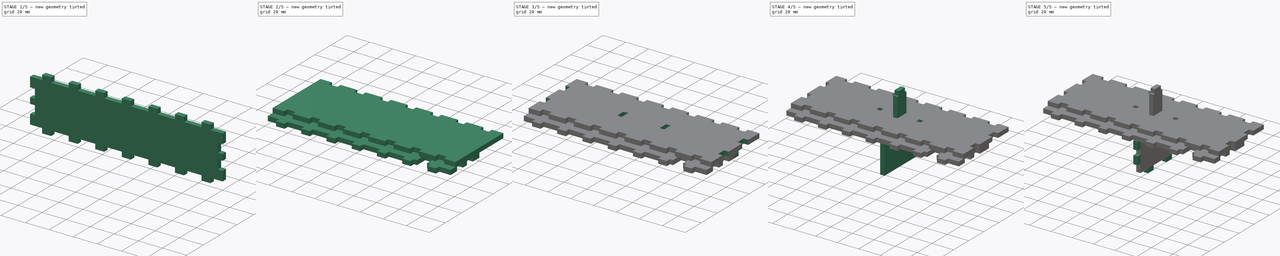
[diagram: build sequence overview — one tinted view per stage of 5, left to right]
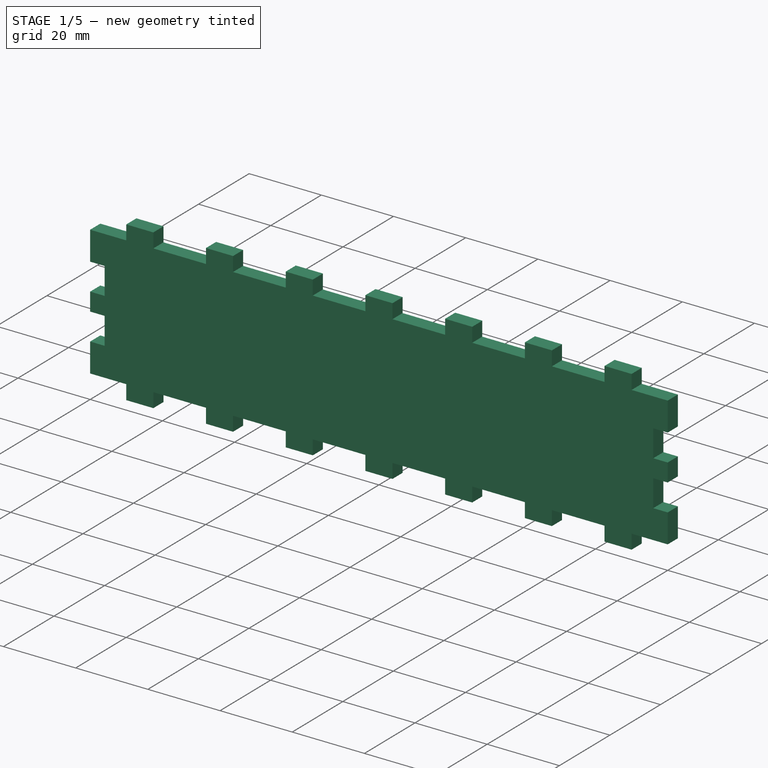
[diagram: stage 1 of 5 — iso view after this stage's code; geometry added in this stage tinted green]
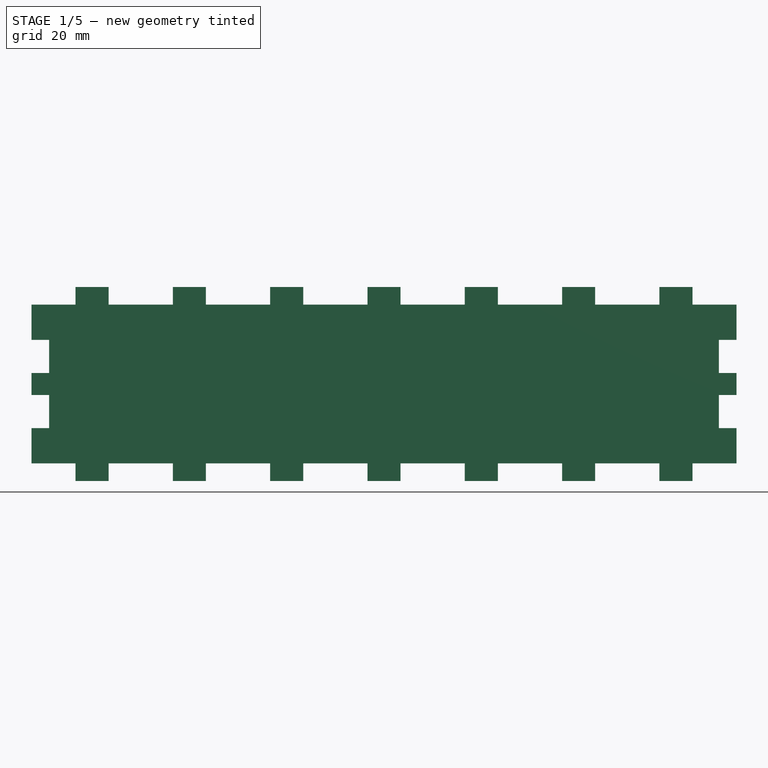
[diagram: stage 1 of 5 — front view after this stage's code; geometry added in this stage tinted green]
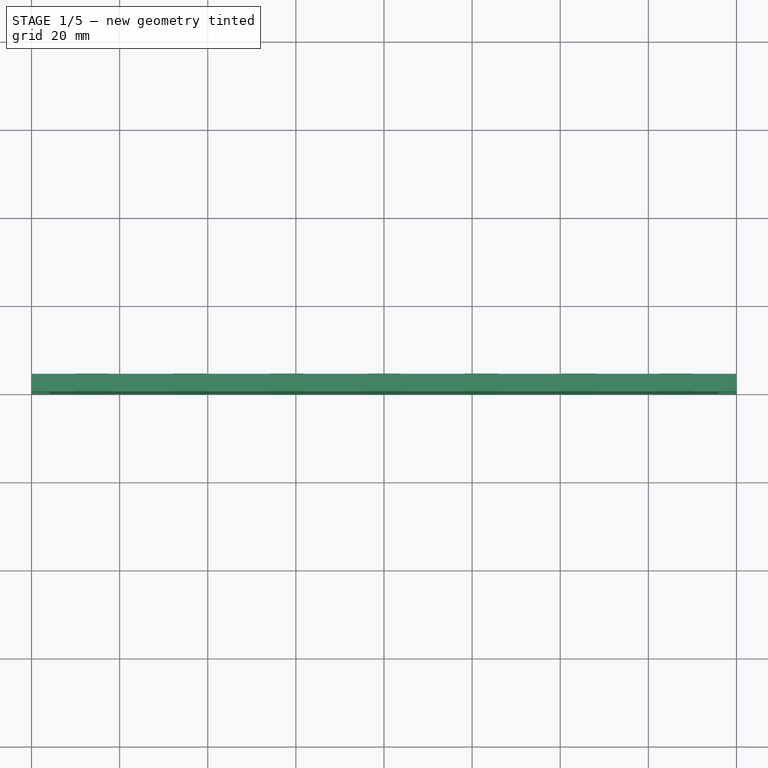
[diagram: stage 1 of 5 — top view after this stage's code; geometry added in this stage tinted green]
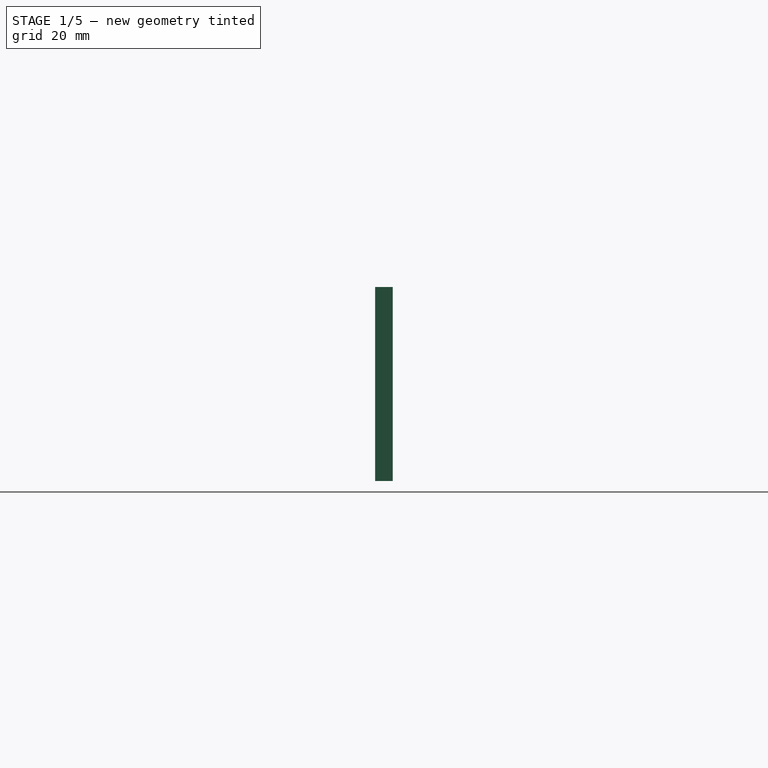
[diagram: stage 1 of 5 — right view after this stage's code; geometry added in this stage tinted green]
FCSTD DOCUMENT  (FreeCAD 0.21R33771 (Git))
Label: deskLampCNC
License: All rights reserved
LicenseURL: http://en.wikipedia.org/wiki/All_rights_reserved
objects: Sketcher::SketchObject×18, PartDesign::Pocket×9, PartDesign::LinearPattern×9, PartDesign::Pad×8, PartDesign::Body×7, PartDesign::MultiTransform×6, PartDesign::Mirrored×3, PartDesign::FeatureBase×2, Spreadsheet::Sheet×1, App::Link×1, App::Part×1
note: 79 computed .brp shape members not serialized (recipe doc carries the construction recipe); baked Part::Feature solids carry a one-line shape summary decoded from their .brp

FEATURE [Sketcher::SketchObject] Sketch002
  FullyConstrained = true
  MapMode = 5
  Placement = pos=(0,0,0) rot=(1,0,0;1.5708rad)
  Support = -> [XZ_Plane002]
  expr: Constraints[10] = Spreadsheet.bodyHeight
  expr: Constraints[8] = Spreadsheet.bodyWidth
  sketch-geometry (4):
    g0: LineSegment StartX=-80 StartY=0 StartZ=0 EndX=80 EndY=-1e-16 EndZ=0
    g1: LineSegment StartX=80 StartY=-1e-16 StartZ=0 EndX=80 EndY=-36 EndZ=0
    g2: LineSegment StartX=80 StartY=-36 StartZ=0 EndX=-80 EndY=-36 EndZ=0
    g3: LineSegment StartX=-80 StartY=-36 StartZ=0 EndX=-80 EndY=0 EndZ=0
  constraints (11):
    c: Coincident(g0,g1)
    c: Coincident(g1,g2)
    c: Coincident(g2,g3)
    c: Coincident(g3,g0)
    c: Horizontal(g2)
    c: Vertical(g1)
    c: Vertical(g3)
    c: PointOnObject(g0,g-1)
    c: DistanceX(g0,g0) = 160
    c: Symmetric(g0,g0,g-2)
    c: DistanceY(g1,g1) = 36
FEATURE [PartDesign::Pad] Pad001
  Direction = (0,-1,-2e-16)
  Length = 4
  Length2 = 100
  Placement = pos=(0,0,0) rot=(1,0,0;1.5708rad)
  Profile = -> Sketch002
  Reversed = true
  Type = 0
  expr: Length = Spreadsheet.deskThickness
FEATURE [Sketcher::SketchObject] Sketch003
  ExternalGeometry = -> [Pad001]
  FullyConstrained = true
  MapMode = 5
  Placement = pos=(0,0,0) rot=(0,0,1;3.14159rad)
  Support = -> [Pad001]
  expr: Constraints[10] = Spreadsheet.holeXOffset
  expr: Constraints[8] = Spreadsheet.holeWidth
  expr: Constraints[9] = Spreadsheet.deskThickness
  sketch-geometry (4):
    g0: LineSegment StartX=70 StartY=0 StartZ=0 EndX=62.5 EndY=0 EndZ=0
    g1: LineSegment StartX=62.5 StartY=0 StartZ=0 EndX=62.5 EndY=-4 EndZ=0
    g2: LineSegment StartX=62.5 StartY=-4 StartZ=0 EndX=70 EndY=-4 EndZ=0
    g3: LineSegment StartX=70 StartY=-4 StartZ=0 EndX=70 EndY=0 EndZ=0
  constraints (12):
    c: Coincident(g0,g1)
    c: Coincident(g1,g2)
    c: Coincident(g2,g3)
    c: Coincident(g3,g0)
    c: Horizontal(g0)
    c: Horizontal(g2)
    c: Vertical(g1)
    c: Vertical(g3)
    c: DistanceX(g0,g0) = 7.5
    c: DistanceY(g3,g3) = 4
    c: DistanceX(g0,g-3) = 10
    c: Horizontal(g0,g-3)
FEATURE [PartDesign::Pad] Pad002
  BaseFeature = -> Pad001
  Direction = (0,-2e-16,1)
  Length = 4
  Length2 = 100
  Placement = pos=(0,0,0) rot=(1,0,0;1.5708rad)
  Profile = -> Sketch003
  Type = 0
  expr: Length = Spreadsheet.deskThickness
FEATURE [Sketcher::SketchObject] Sketch007
  FullyConstrained = true
  MapMode = 5
  Placement = pos=(-1.7e-14,-26,9e-15) rot=(0.57735,0.57735,-0.57735;2.0944rad)
  expr: Constraints[10] = Spreadsheet.holeZOffset
  expr: Constraints[8] = Spreadsheet.holeHeight
  expr: Constraints[9] = Spreadsheet.holeWidth
  sketch-geometry (4):
    g0: LineSegment StartX=8 StartY=0 StartZ=0 EndX=15.5 EndY=0 EndZ=0
    g1: LineSegment StartX=15.5 StartY=0 StartZ=0 EndX=15.5 EndY=4 EndZ=0
    g2: LineSegment StartX=15.5 StartY=4 StartZ=0 EndX=8 EndY=4 EndZ=0
    g3: LineSegment StartX=8 StartY=4 StartZ=0 EndX=8 EndY=0 EndZ=0
  constraints (12):
    c: Coincident(g0,g1)
    c: Coincident(g1,g2)
    c: Coincident(g2,g3)
    c: Coincident(g3,g0)
    c: Horizontal(g0)
    c: Horizontal(g2)
    c: Vertical(g1)
    c: Vertical(g3)
    c: DistanceY(g3,g3) = 4
    c: DistanceX(g2,g2) = 7.5
    c: DistanceX(g-1,g0) = 8
    c: Horizontal(g-1,g0)
FEATURE [Sketcher::SketchObject] Sketch009
  FullyConstrained = true
  MapMode = 5
  Placement = pos=(-80,0,0) rot=(0.707107,0,-0.707107;3.14159rad)
  expr: Constraints[10] = Spreadsheet.holeWidth
  expr: Constraints[11] = Spreadsheet.holeZOffset
  expr: Constraints[9] = Spreadsheet.holeHeight
  sketch-geometry (4):
    g0: LineSegment StartX=8 StartY=-4 StartZ=0 EndX=15.5 EndY=-4 EndZ=0
    g1: LineSegment StartX=15.5 StartY=-4 StartZ=0 EndX=15.5 EndY=0 EndZ=0
    g2: LineSegment StartX=15.5 StartY=0 StartZ=0 EndX=8 EndY=0 EndZ=0
    g3: LineSegment StartX=8 StartY=0 StartZ=0 EndX=8 EndY=-4 EndZ=0
  constraints (12):
    c: Coincident(g0,g1)
    c: Coincident(g1,g2)
    c: Coincident(g2,g3)
    c: Coincident(g3,g0)
    c: Horizontal(g0)
    c: Horizontal(g2)
    c: Vertical(g1)
    c: Vertical(g3)
    c: Horizontal(g2,g-1)
    c: DistanceY(g1,g1) = 4
    c: DistanceX(g2,g2) = 7.5
    c: DistanceX(g-1,g2) = 8
FEATURE [PartDesign::Pocket] Pocket002
  BaseFeature = -> Pad002
  Direction = (1,0,2e-16)
  Length = 4
  Length2 = 100
  Placement = pos=(0,0,0) rot=(1,0,0;1.5708rad)
  Profile = -> Sketch009
  Type = 0
  expr: Length = Spreadsheet.deskThickness
FEATURE [PartDesign::LinearPattern] LinearPattern005
  Direction = -> Z_Axis002
  Length = 12.5
  Occurrences = 2
  Placement = pos=(0,0,0) rot=(1,0,0;1.5708rad)
  Reversed = true
  expr: Length = Spreadsheet.holeZLength
  expr: Occurrences = Spreadsheet.holeZCount
FEATURE [PartDesign::Mirrored] Mirrored
  MirrorPlane = -> YZ_Plane002
  Placement = pos=(0,0,0) rot=(1,0,0;1.5708rad)
FEATURE [PartDesign::MultiTransform] MultiTransform
  BaseFeature = -> Pocket002
  Originals = -> [Pocket002]
  Placement = pos=(0,0,0) rot=(1,0,0;1.5708rad)
  Transformations = -> [LinearPattern005,Mirrored]
FEATURE [PartDesign::LinearPattern] LinearPattern009
  Direction = -> Sketch003 [H_Axis]
  Length = 132.5
  Occurrences = 7
  Placement = pos=(0,0,0) rot=(1,0,0;1.5708rad)
  Reversed = true
  expr: Length = Spreadsheet.holeXLength
  expr: Occurrences = Spreadsheet.holeXCount
FEATURE [PartDesign::LinearPattern] LinearPattern010
  Direction = -> Z_Axis002
  Length = 40
  Occurrences = 2
  Placement = pos=(0,0,0) rot=(1,0,0;1.5708rad)
  Reversed = true
  expr: Length = Spreadsheet.bodyHeight + Spreadsheet.deskThickness
FEATURE [PartDesign::MultiTransform] MultiTransform003
  BaseFeature = -> MultiTransform
  Originals = -> [Pad002]
  Placement = pos=(0,0,0) rot=(1,0,0;1.5708rad)
  Transformations = -> [LinearPattern009,LinearPattern010]
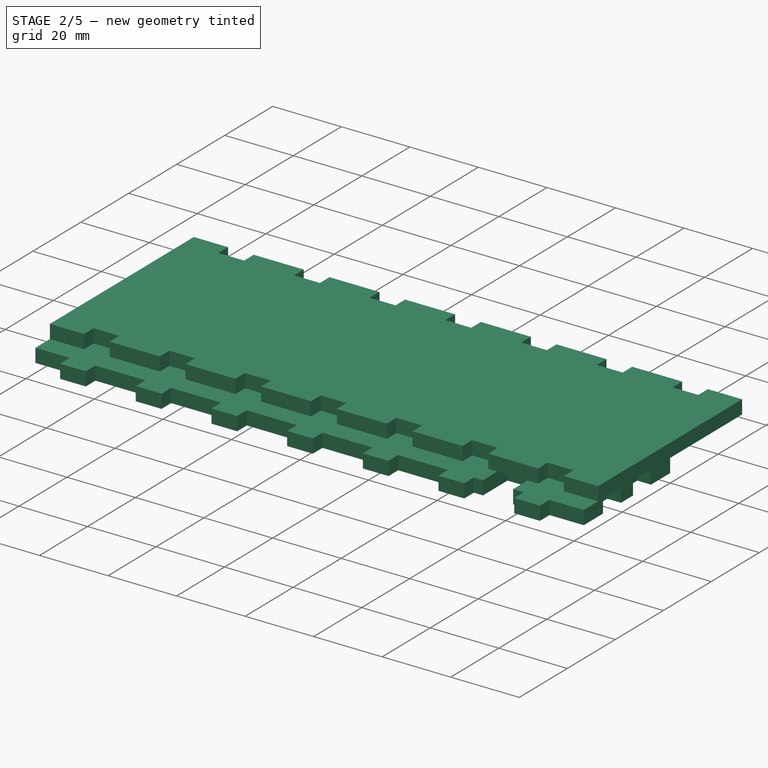
[diagram: stage 2 of 5 — iso view after this stage's code; geometry added in this stage tinted green]
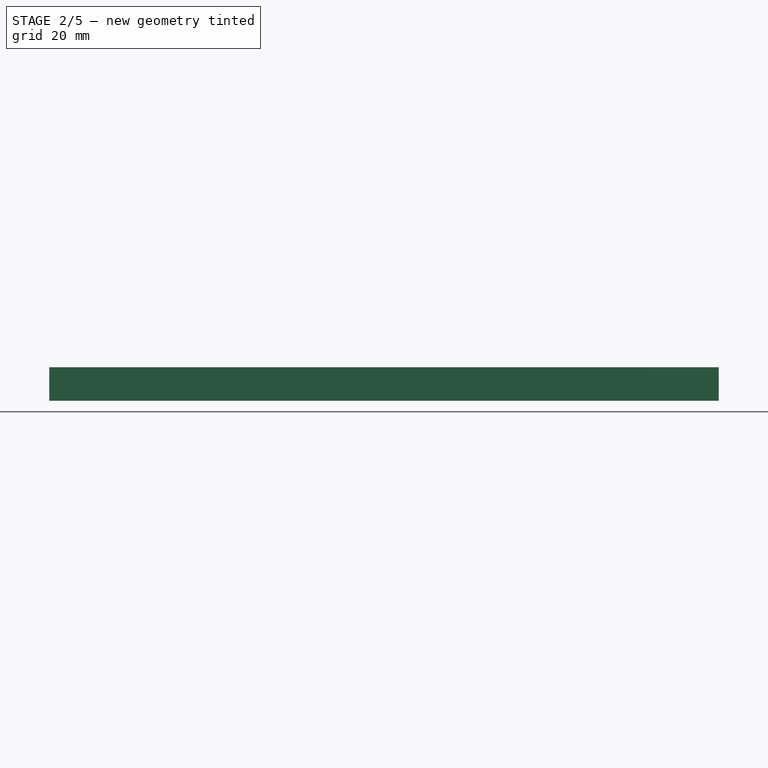
[diagram: stage 2 of 5 — front view after this stage's code; geometry added in this stage tinted green]
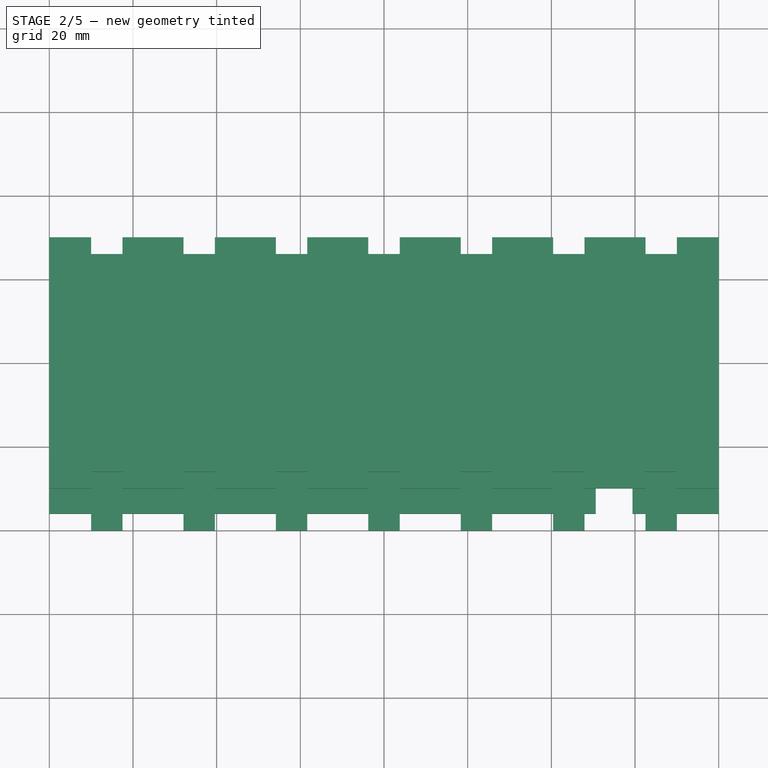
[diagram: stage 2 of 5 — top view after this stage's code; geometry added in this stage tinted green]
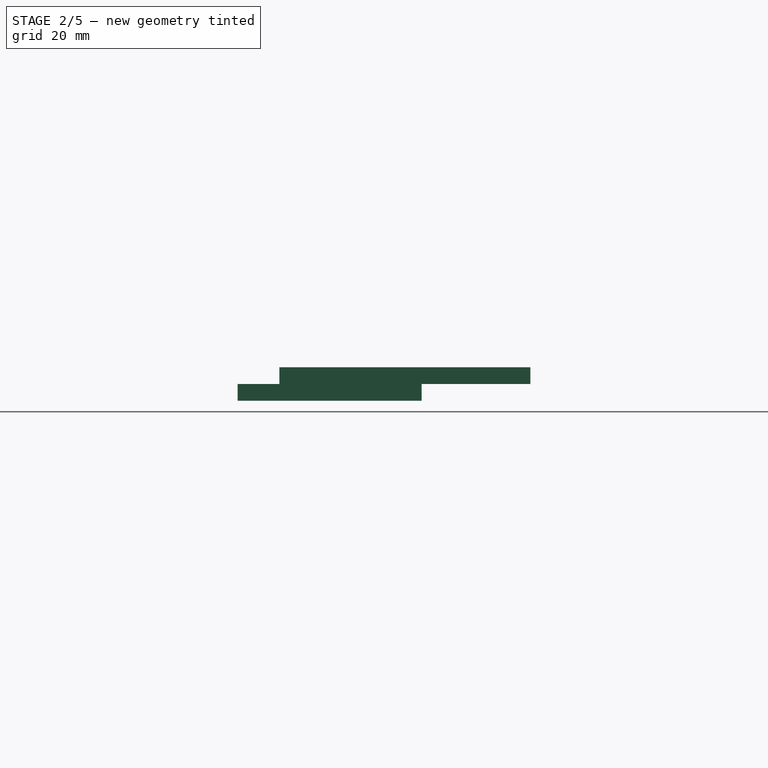
[diagram: stage 2 of 5 — right view after this stage's code; geometry added in this stage tinted green]
FEATURE [Sketcher::SketchObject] Sketch
  FullyConstrained = true
  MapMode = 5
  Support = -> [XY_Plane]
  expr: Constraints[6] = Spreadsheet.bodyDepth
  expr: Constraints[7] = Spreadsheet.bodyWidth
  sketch-geometry (4):
    g0: LineSegment StartX=-80 StartY=-30 StartZ=0 EndX=80 EndY=-30 EndZ=0
    g1: LineSegment StartX=80 StartY=-30 StartZ=0 EndX=80 EndY=30 EndZ=0
    g2: LineSegment StartX=80 StartY=30 StartZ=0 EndX=-80 EndY=30 EndZ=0
    g3: LineSegment StartX=-80 StartY=30 StartZ=0 EndX=-80 EndY=-30 EndZ=0
  constraints (10):
    c: Coincident(g0,g1)
    c: Coincident(g1,g2)
    c: Coincident(g2,g3)
    c: Coincident(g3,g0)
    c: Horizontal(g0)
    c: Vertical(g3)
    c: DistanceY(g1,g1) = 60
    c: DistanceX(g2,g2) = 160
    c: Symmetric(g1,g2,g-2)
    c: Symmetric(g0,g1,g-1)
FEATURE [Spreadsheet::Sheet] Spreadsheet
  cells = B2='bodyWidth; C2(bodyWidth)=160; E2='deskThickness; F2(deskThickness)=4; B3='bodyDepth; C3(bodyDepth)=60; E3='plexiThickness; F3(plexiThickness)=4; B4='bodyHeight; C4(bodyHeight)==40 - deskThickness; E4='plexiWidth; F4(plexiWidth)=70; B6='holeWidth; C6(holeWidth)=7.5; E6='holeXCount; F6(holeXCount)=7; B7='holeHeight; C7(holeHeight)==deskThickness; E7='holeYCount; F7(holeYCount)=2; E8='holeZCount; F8(holeZCount)=2; B9='ledPadHole; C9(ledPadHole)=8; E9='holeXLength; F9(holeXLength)==bodyWidth - holeWidth - holeXOffset * 2; B10='ledPadWidth; C10(ledPadWidth)=12; E10='holeYLength; F10(holeYLength)==bodyDepth - holeWidth - holeYOffset * 2; B11='ledPadSpace; C11(ledPadSpace)=10; E11='holeZLength; F11(holeZLength)==bodyHeight - holeWidth - holeZOffset * 2; B12='ledSpace; C12(ledSpace)==(plexiWidth - ledCount * ledRad) / (ledCount - 1); E12='holeXOffset; F12(holeXOffset)=10; B13='ledHolderSupportYOffset; C13(ledHolderSupportYOffset)==(ledRad + ledSpace) * 2; E13='holeYOffset; F13(holeYOffset)=14; E14='holeZOffset; F14(holeZOffset)=8; B15='ledRad; C15(ledRad)=5; B16='ledCount; C16(ledCount)=8
FEATURE [PartDesign::Pad] Pad
  Direction = (0,0,1)
  Length = 4
  Length2 = 100
  Profile = -> Sketch
  Type = 0
  expr: Length = Spreadsheet.deskThickness
FEATURE [Sketcher::SketchObject] Sketch001
  ExternalGeometry = -> [Pad]
  FullyConstrained = true
  MapMode = 5
  Placement = pos=(0,0,4) rot=(0,0,1;0rad)
  Support = -> [Pad]
  expr: Constraints[23] = Spreadsheet.holeXOffset
  expr: Constraints[8] = Spreadsheet.holeWidth
  expr: Constraints[9] = Spreadsheet.deskThickness
  sketch-geometry (9):
    g0: LineSegment StartX=-70 StartY=30 StartZ=0 EndX=-62.5 EndY=30 EndZ=0
    g1: LineSegment StartX=-62.5 StartY=30 StartZ=0 EndX=-62.5 EndY=26 EndZ=0
    g2: LineSegment StartX=-62.5 StartY=26 StartZ=0 EndX=-70 EndY=26 EndZ=0
    g3: LineSegment StartX=-70 StartY=26 StartZ=0 EndX=-70 EndY=30 EndZ=0
    g4: LineSegment StartX=-70 StartY=-26 StartZ=0 EndX=-62.5 EndY=-26 EndZ=0
    g5: LineSegment StartX=-62.5 StartY=-26 StartZ=0 EndX=-62.5 EndY=-30 EndZ=0
    g6: LineSegment StartX=-62.5 StartY=-30 StartZ=0 EndX=-70 EndY=-30 EndZ=0
    g7: LineSegment StartX=-70 StartY=-30 StartZ=0 EndX=-70 EndY=-26 EndZ=0
    g8: LineSegment StartX=-70 StartY=26 StartZ=0 EndX=-70 EndY=-26 EndZ=0
  constraints (26):
    c: Coincident(g0,g1)
    c: Coincident(g1,g2)
    c: Coincident(g2,g3)
    c: Coincident(g3,g0)
    c: Horizontal(g0)
    c: Horizontal(g2)
    c: Vertical(g1)
    c: Vertical(g3)
    c: DistanceX(g0,g0) = 7.5
    c: DistanceY(g1,g1) = 4
    c: Coincident(g4,g5)
    c: Coincident(g5,g6)
    c: Coincident(g6,g7)
    c: Coincident(g7,g4)
    c: Horizontal(g4)
    c: Horizontal(g6)
    c: Vertical(g5)
    c: Vertical(g7)
    c: Equal(g0,g4) = 5
    c: Equal(g1,g5) = 2
    c: Coincident(g8,g2)
    c: Coincident(g8,g4)
    c: Vertical(g8)
    c: DistanceX(g-3,g0) = 10
    c: Horizontal(g6,g-4)
    c: Horizontal(g0,g-3)
FEATURE [PartDesign::Pocket] Pocket
  BaseFeature = -> Pad
  Direction = (0,0,-1)
  Length = 4
  Length2 = 100
  Profile = -> Sketch001
  Type = 0
  expr: Length = Spreadsheet.deskThickness
FEATURE [PartDesign::LinearPattern] LinearPattern
  BaseFeature = -> Pocket
  Direction = -> X_Axis
  Length = 132.5
  Occurrences = 7
  Originals = -> [Pocket]
  expr: Length = Spreadsheet.holeXLength
  expr: Occurrences = Spreadsheet.holeXCount
FEATURE [PartDesign::Body] Body006  label="bottom"
  BaseFeature = -> MultiTransform004
  Group = -> [BaseFeature,Sketch017,Pocket008]
  Origin = -> Origin007
  Placement = pos=(0,0,-40) rot=(0,0,1;0rad)
  Tip = -> Pocket008
  expr: .Placement.Base.z = -Spreadsheet.bodyHeight - Spreadsheet.deskThickness
FEATURE [PartDesign::FeatureBase] BaseFeature001
  BaseFeature = -> MultiTransform003
FEATURE [Sketcher::SketchObject] Sketch018
  FullyConstrained = true
  MapMode = 5
  Placement = pos=(0,0,-4) rot=(1,0,0;3.14159rad)
  Support = -> [BaseFeature001]
  expr: Constraints[9] = Spreadsheet.bodyHeight
  sketch-geometry (5):
    g0: LineSegment StartX=59.4 StartY=25.8 StartZ=0 EndX=59.4 EndY=36 EndZ=0
    g1: LineSegment StartX=59.4 StartY=36 StartZ=0 EndX=50.6 EndY=36 EndZ=0
    g2: LineSegment StartX=50.6 StartY=36 StartZ=0 EndX=50.6 EndY=25.8 EndZ=0
    g3: LineSegment StartX=50.6 StartY=25.8 StartZ=0 EndX=59.4 EndY=25.8 EndZ=0
    g4: GeomPoint X=55 Y=30.9 Z=0
  constraints (13):
    c: Coincident(g0,g1)
    c: Coincident(g1,g2)
    c: Coincident(g2,g3)
    c: Coincident(g3,g0)
    c: Horizontal(g1)
    c: Horizontal(g3)
    c: Vertical(g0)
    c: Vertical(g2)
    c: Symmetric(g1,g0,g4)
    c: DistanceY(g-1,g1) = 36
    c: DistanceX(g-1,g4) = 55
    c: DistanceY(g2,g2) = 10.2
    c: DistanceX(g3,g3) = 8.8
FEATURE [PartDesign::Pocket] Pocket009
  BaseFeature = -> BaseFeature001
  Direction = (0,2e-16,1)
  Length = 4
  Length2 = 5
  Profile = -> Sketch018
  ReferenceAxis = -> Sketch018 [N_Axis]
  Type = 0
  expr: Length = Spreadsheet.deskThickness
FEATURE [PartDesign::Body] Body009  label="rear"
  BaseFeature = -> MultiTransform003
  Group = -> [BaseFeature001,Sketch018,Pocket009]
  Origin = -> Origin010
  Placement = pos=(0,26,0) rot=(1,0,0;1.5708rad)
  Tip = -> Pocket009
  expr: .Placement.Base.y = Spreadsheet.bodyDepth / 2 - Spreadsheet.deskThickness
FEATURE [App::Part] Part
  Group = -> [Body,Body001,Body002,Link,Body006,Body007,Body008,Body009]
  Origin = -> Origin001
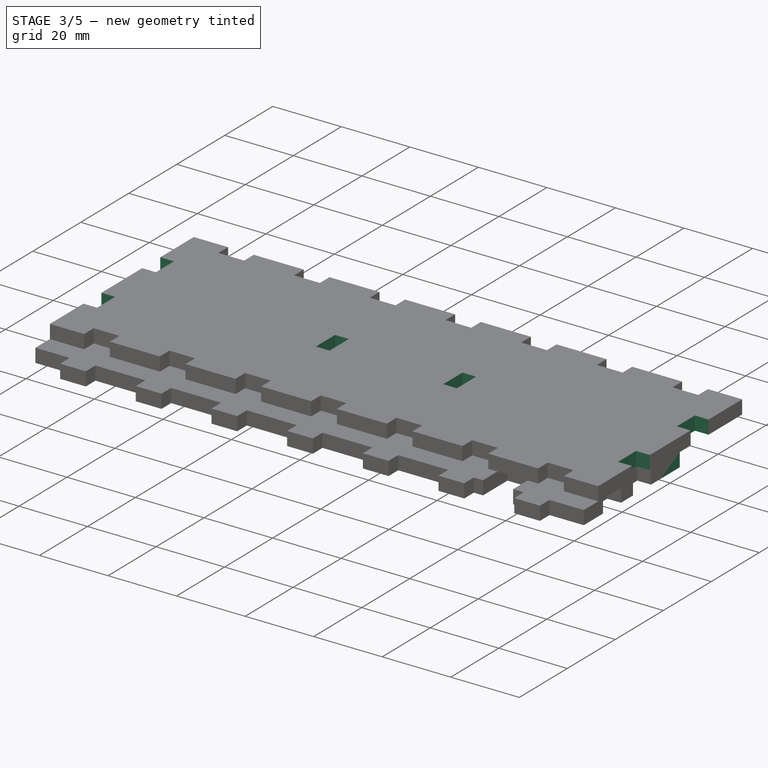
[diagram: stage 3 of 5 — iso view after this stage's code; geometry added in this stage tinted green]
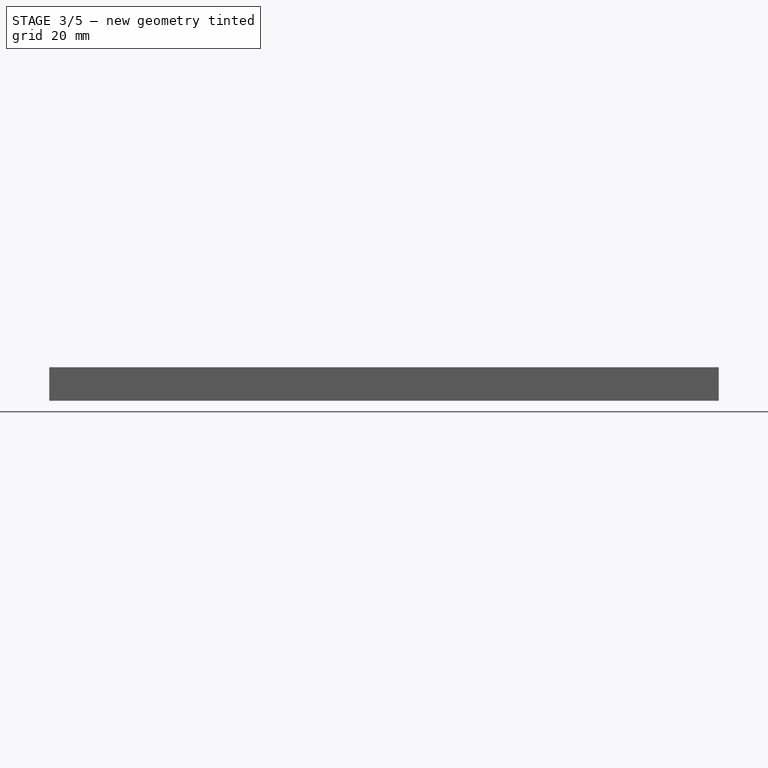
[diagram: stage 3 of 5 — front view after this stage's code; geometry added in this stage tinted green]
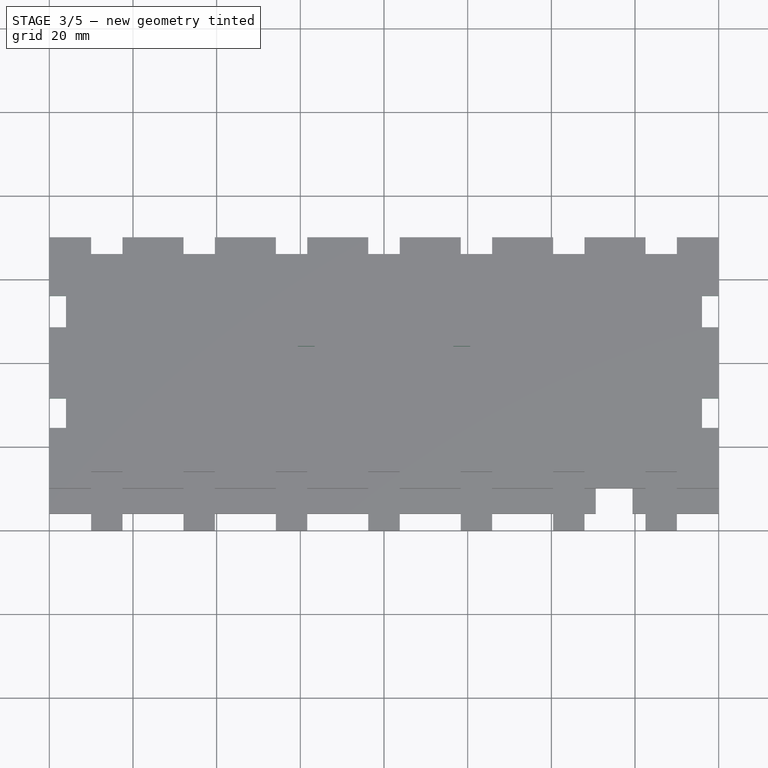
[diagram: stage 3 of 5 — top view after this stage's code; geometry added in this stage tinted green]
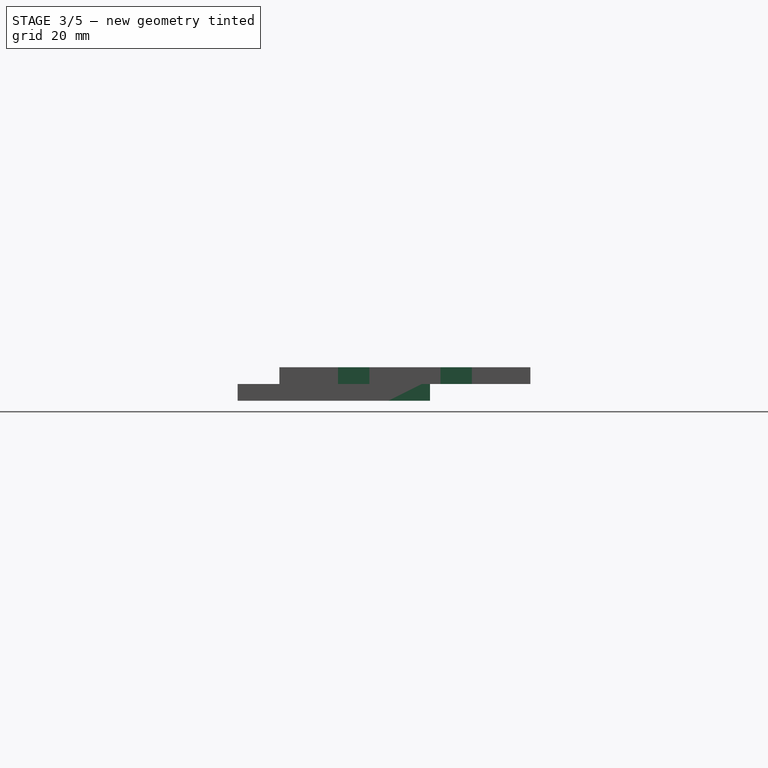
[diagram: stage 3 of 5 — right view after this stage's code; geometry added in this stage tinted green]
FEATURE [Sketcher::SketchObject] Sketch005
  FullyConstrained = true
  MapMode = 5
  Placement = pos=(0,0,4) rot=(0,0,1;0rad)
  Support = -> [LinearPattern]
  expr: Constraints[10] = Spreadsheet.bodyWidth / 2
  expr: Constraints[11] = Spreadsheet.holeWidth
  expr: Constraints[8] = Spreadsheet.bodyDepth / 2 - Spreadsheet.holeYOffset
  expr: Constraints[9] = Spreadsheet.deskThickness
  sketch-geometry (4):
    g0: LineSegment StartX=-80 StartY=16 StartZ=0 EndX=-76 EndY=16 EndZ=0
    g1: LineSegment StartX=-76 StartY=16 StartZ=0 EndX=-76 EndY=8.5 EndZ=0
    g2: LineSegment StartX=-76 StartY=8.5 StartZ=0 EndX=-80 EndY=8.5 EndZ=0
    g3: LineSegment StartX=-80 StartY=8.5 StartZ=0 EndX=-80 EndY=16 EndZ=0
  constraints (12):
    c: Coincident(g0,g1)
    c: Coincident(g1,g2)
    c: Coincident(g2,g3)
    c: Coincident(g3,g0)
    c: Horizontal(g0)
    c: Horizontal(g2)
    c: Vertical(g1)
    c: Vertical(g3)
    c: DistanceY(g-1,g0) = 16
    c: DistanceX(g0,g0) = 4
    c: DistanceX(g0,g-1) = 80
    c: DistanceY(g1,g1) = 7.5
FEATURE [PartDesign::Pocket] Pocket001
  BaseFeature = -> LinearPattern
  Direction = (0,0,-1)
  Length = 4
  Length2 = 100
  Profile = -> Sketch005
  ReferenceAxis = -> Sketch005 [N_Axis]
  Type = 0
  expr: Length = Spreadsheet.deskThickness
FEATURE [PartDesign::Body] Body002  label="left"
  Group = -> [Sketch004,Pad003,Sketch006,Pad004,Sketch007,MultiTransform001,LinearPattern006,LinearPattern007,Pad005,MultiTransform002,LinearPattern008,Mirrored001,Sketch011,Pocket004]
  Origin = -> Origin003
  Placement = pos=(-80,0,0) rot=(0,0,1;0rad)
  Tip = -> Pocket004
  expr: .Placement.Base.x = -Spreadsheet.bodyWidth / 2
FEATURE [PartDesign::LinearPattern] LinearPattern011
  Direction = -> Y_Axis
  Length = 24.5
  Occurrences = 2
  Reversed = true
  expr: Length = Spreadsheet.holeYLength
  expr: Occurrences = Spreadsheet.holeYCount
FEATURE [PartDesign::Mirrored] Mirrored002
  MirrorPlane = -> Sketch005 [V_Axis]
FEATURE [PartDesign::MultiTransform] MultiTransform004
  BaseFeature = -> Pocket001
  Originals = -> [Pocket001]
  Transformations = -> [LinearPattern011,Mirrored002]
FEATURE [PartDesign::FeatureBase] BaseFeature
  BaseFeature = -> MultiTransform004
FEATURE [PartDesign::Body] Body  label="top"
  Group = -> [Sketch,Pad,Sketch001,Pocket,LinearPattern,Sketch005,Pocket001,Sketch010,MultiTransform004,LinearPattern011,Mirrored002,Sketch012,Pocket005]
  Origin = -> Origin
  Tip = -> Pocket005
FEATURE [Sketcher::SketchObject] Sketch013
  FullyConstrained = true
  MapMode = 5
  Support = -> [XY_Plane008]
  expr: Constraints[10] = Spreadsheet.bodyWidth - Spreadsheet.deskThickness * 2
  expr: Constraints[11] = Spreadsheet.ledPadWidth
  expr: Constraints[26] = Spreadsheet.deskThickness
  expr: Constraints[40] = Spreadsheet.ledPadHole
  sketch-geometry (17):
    g0: LineSegment StartX=-76 StartY=-6 StartZ=0 EndX=-76 EndY=-4 EndZ=0
    g1: LineSegment StartX=-76 StartY=6 StartZ=0 EndX=76 EndY=6 EndZ=0
    g2: LineSegment StartX=76 StartY=6 StartZ=0 EndX=76 EndY=4 EndZ=0
    g3: LineSegment StartX=76 StartY=-6 StartZ=0 EndX=-76 EndY=-6 EndZ=0
    g4: GeomPoint X=0 Y=0 Z=0
    g5: LineSegment StartX=-80 StartY=-4 StartZ=0 EndX=-80 EndY=4 EndZ=0
    g6: LineSegment StartX=-80 StartY=4 StartZ=0 EndX=-76 EndY=4 EndZ=0
    g7: LineSegment StartX=-76 StartY=-4 StartZ=0 EndX=-80 EndY=-4 EndZ=0
    g8: GeomPoint X=-78 Y=0 Z=0
    g9: LineSegment StartX=80 StartY=-4 StartZ=0 EndX=80 EndY=4 EndZ=0
    g10: LineSegment StartX=80 StartY=4 StartZ=0 EndX=76 EndY=4 EndZ=0
    g11: LineSegment StartX=76 StartY=-4 StartZ=0 EndX=80 EndY=-4 EndZ=0
    g12: GeomPoint X=78 Y=0 Z=0
    g13: LineSegment StartX=76 StartY=-4 StartZ=0 EndX=76 EndY=-6 EndZ=0
    g14: LineSegment StartX=-76 StartY=4 StartZ=0 EndX=-76 EndY=6 EndZ=0
    g15: LineSegment StartX=-76 StartY=4 StartZ=0 EndX=-76 EndY=-4 EndZ=0
    g16: LineSegment StartX=76 StartY=4 StartZ=0 EndX=76 EndY=-4 EndZ=0
  constraints (42):
    c: Coincident(g14,g1)
    c: Coincident(g1,g2)
    c: Coincident(g13,g3)
    c: Coincident(g3,g0)
    c: Horizontal(g1)
    c: Horizontal(g3)
    c: Vertical(g0)
    c: Vertical(g2)
    c: Symmetric(g1,g0,g4)
    c: Coincident(g4,g-1)
    c: DistanceX(g3,g3) = 152
    c: DistanceY(g13,g2) = 12
    c: Coincident(g5,g6)
    c: Coincident(g7,g5)
    c: Horizontal(g6)
    c: Horizontal(g7)
    c: Vertical(g5)
    c: Symmetric(g6,g5,g8)
    c: PointOnObject(g8,g-1)
    c: Coincident(g9,g10)
    c: Coincident(g11,g9)
    c: Horizontal(g10)
    c: Horizontal(g11)
    c: Vertical(g9)
    c: Symmetric(g10,g9,g12)
    c: PointOnObject(g12,g-1)
    c: DistanceX(g6,g6) = 4
    c: Equal(g6,g10)
    c: Equal(g5,g9)
    c: Coincident(g2,g10)
    c: Coincident(g14,g6)
    c: Coincident(g15,g6)
    c: Coincident(g15,g0)
    c: Vertical(g15)
    c: Coincident(g16,g2)
    c: Coincident(g16,g11)
    c: Vertical(g16)
    c: Vertical(g13)
    c: Coincident(g13,g11)
    c: Coincident(g7,g0)
    c: DistanceY(g5,g5) = 8
    c: Vertical(g14)
FEATURE [PartDesign::Pad] Pad006
  Direction = (0,0,1)
  Length = 4
  Length2 = 10
  Profile = -> Sketch013
  ReferenceAxis = -> Sketch013 [N_Axis]
  Reversed = true
  Type = 0
  expr: Length = Spreadsheet.deskThickness
FEATURE [Sketcher::SketchObject] Sketch014
  FullyConstrained = true
  MapMode = 5
  Placement = pos=(0,0,0) rot=(0.57735,0.57735,0.57735;2.0944rad)
  Support = -> [YZ_Plane009]
  expr: Constraints[21] = Spreadsheet.ledPadHole
  expr: Constraints[30] = Spreadsheet.deskThickness
  expr: Constraints[8] = Spreadsheet.bodyHeight - Spreadsheet.ledPadSpace - Spreadsheet.deskThickness
  expr: Constraints[9] = Spreadsheet.ledPadWidth
  sketch-geometry (12):
    g0: LineSegment StartX=-6 StartY=22 StartZ=0 EndX=-4 EndY=22 EndZ=0
    g1: LineSegment StartX=6 StartY=22 StartZ=0 EndX=6 EndY=0 EndZ=0
    g2: LineSegment StartX=6 StartY=0 StartZ=0 EndX=4 EndY=0 EndZ=0
    g3: LineSegment StartX=-6 StartY=0 StartZ=0 EndX=-6 EndY=22 EndZ=0
    g4: LineSegment StartX=4 StartY=22 StartZ=0 EndX=4 EndY=26 EndZ=0
    g5: LineSegment StartX=4 StartY=26 StartZ=0 EndX=-4 EndY=26 EndZ=0
    g6: LineSegment StartX=-4 StartY=26 StartZ=0 EndX=-4 EndY=22 EndZ=0
    g7: LineSegment StartX=4 StartY=0 StartZ=0 EndX=4 EndY=-4 EndZ=0
    g8: LineSegment StartX=4 StartY=-4 StartZ=0 EndX=-4 EndY=-4 EndZ=0
    g9: LineSegment StartX=-4 StartY=-4 StartZ=0 EndX=-4 EndY=0 EndZ=0
    g10: LineSegment StartX=-4 StartY=0 StartZ=0 EndX=-6 EndY=0 EndZ=0
    g11: LineSegment StartX=4 StartY=22 StartZ=0 EndX=6 EndY=22 EndZ=0
  constraints (34):
    c: Coincident(g11,g1)
    c: Coincident(g1,g2)
    c: Coincident(g10,g3)
    c: Coincident(g3,g0)
    c: Horizontal(g0)
    c: Vertical(g1)
    c: Vertical(g3)
    c: PointOnObject(g1,g-1)
    c: DistanceY(g1,g1) = 22
    c: DistanceX(g0,g11) = 12
    c: Symmetric(g1,g10,g-2)
    c: Coincident(g4,g5)
    c: Coincident(g5,g6)
    c: Horizontal(g5)
    c: Vertical(g4)
    c: Vertical(g6)
    c: Coincident(g7,g8)
    c: Coincident(g8,g9)
    c: Horizontal(g8)
    c: Vertical(g7)
    c: Vertical(g9)
    c: DistanceX(g5,g5) = 8
    c: Symmetric(g4,g6,g-2)
    c: Coincident(g11,g4)
    c: Coincident(g0,g6)
    c: Equal(g5,g8)
    c: Coincident(g9,g10)
    c: Coincident(g2,g7)
    c: Vertical(g2,g4)
    c: Equal(g7,g4)
    c: DistanceY(g4,g4) = 4
    c: Horizontal(g2)
    c: Horizontal(g10)
    c: Horizontal(g11)
FEATURE [Sketcher::SketchObject] Sketch015
  FullyConstrained = true
  MapMode = 5
  Support = -> [Pad006]
  expr: Constraints[1] = Spreadsheet.plexiWidth / 2 - Spreadsheet.ledRad / 2
  expr: Constraints[2] = Spreadsheet.ledRad
  sketch-geometry (1):
    g0: Circle CenterX=-32.5 CenterY=0 CenterZ=0 NormalX=0 NormalY=0 NormalZ=1 AngleXU=0 Radius=2.5
  constraints (3):
    c: PointOnObject(g0,g-1)
    c: DistanceX(g0,g-1) = 32.5
    c: Diameter(g0) = 5
FEATURE [PartDesign::Pocket] Pocket006
  BaseFeature = -> Pad006
  Direction = (0,0,-1)
  Length = 4
  Length2 = 5
  Profile = -> Sketch015
  ReferenceAxis = -> Sketch015 [N_Axis]
  Type = 0
  expr: Length = Spreadsheet.deskThickness
FEATURE [PartDesign::Body] Body007  label="ledHolder"
  Group = -> [Sketch013,Pad006,Sketch015,Pocket006,MultiTransform005,LinearPattern012,Sketch016,Pocket007]
  Origin = -> Origin008
  Placement = pos=(0,0,-10) rot=(0,0,1;0rad)
  Tip = -> Pocket007
  expr: .Placement.Base.z = -Spreadsheet.ledPadSpace
FEATURE [Sketcher::SketchObject] Sketch017
  FullyConstrained = true
  MapMode = 5
  Placement = pos=(0,0,4) rot=(0,0,1;0rad)
  Support = -> [BaseFeature]
  expr: Constraints[20] = Spreadsheet.ledHolderSupportYOffset
  expr: Constraints[21] = Spreadsheet.ledHolderSupportYOffset
  expr: Constraints[22] = Spreadsheet.deskThickness
  expr: Constraints[23] = Spreadsheet.deskThickness
  expr: Constraints[24] = Spreadsheet.ledPadHole
  sketch-geometry (10):
    g0: LineSegment StartX=-20.5714 StartY=-4 StartZ=0 EndX=-20.5714 EndY=4 EndZ=0
    g1: LineSegment StartX=-20.5714 StartY=4 StartZ=0 EndX=-16.5714 EndY=4 EndZ=0
    g2: LineSegment StartX=-16.5714 StartY=4 StartZ=0 EndX=-16.5714 EndY=-4 EndZ=0
    g3: LineSegment StartX=-16.5714 StartY=-4 StartZ=0 EndX=-20.5714 EndY=-4 EndZ=0
    g4: GeomPoint X=-18.5714 Y=0 Z=0
    g5: LineSegment StartX=16.5714 StartY=-4 StartZ=0 EndX=16.5714 EndY=4 EndZ=0
    g6: LineSegment StartX=16.5714 StartY=4 StartZ=0 EndX=20.5714 EndY=4 EndZ=0
    g7: LineSegment StartX=20.5714 StartY=4 StartZ=0 EndX=20.5714 EndY=-4 EndZ=0
    g8: LineSegment StartX=20.5714 StartY=-4 StartZ=0 EndX=16.5714 EndY=-4 EndZ=0
    g9: GeomPoint X=18.5714 Y=0 Z=0
  constraints (26):
    c: Coincident(g0,g1)
    c: Coincident(g1,g2)
    c: Coincident(g2,g3)
    c: Coincident(g3,g0)
    c: Horizontal(g1)
    c: Horizontal(g3)
    c: Vertical(g0)
    c: Vertical(g2)
    c: Symmetric(g1,g0,g4)
    c: PointOnObject(g4,g-1)
    c: Coincident(g5,g6)
    c: Coincident(g6,g7)
    c: Coincident(g7,g8)
    c: Coincident(g8,g5)
    c: Horizontal(g6)
    c: Horizontal(g8)
    c: Vertical(g5)
    c: Vertical(g7)
    c: Symmetric(g6,g5,g9)
    c: PointOnObject(g9,g-1)
    c: DistanceX(g-1,g9) = 18.5714
    c: DistanceX(g4,g-1) = 18.5714
    c: DistanceX(g1,g1) = 4
    c: DistanceX(g6,g6) = 4
    c: DistanceY(g7,g7) = 8
    c: Equal(g7,g2)
FEATURE [PartDesign::Pocket] Pocket008
  BaseFeature = -> BaseFeature
  Direction = (0,0,-1)
  Length = 4
  Length2 = 5
  Profile = -> Sketch017
  ReferenceAxis = -> Sketch017 [N_Axis]
  Type = 0
  expr: Length = Spreadsheet.deskThickness
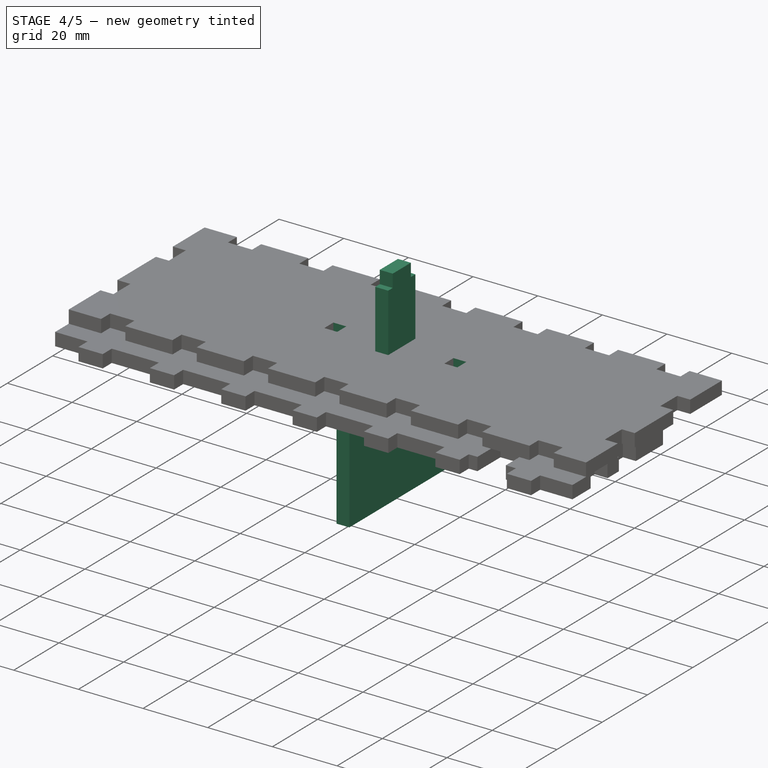
[diagram: stage 4 of 5 — iso view after this stage's code; geometry added in this stage tinted green]
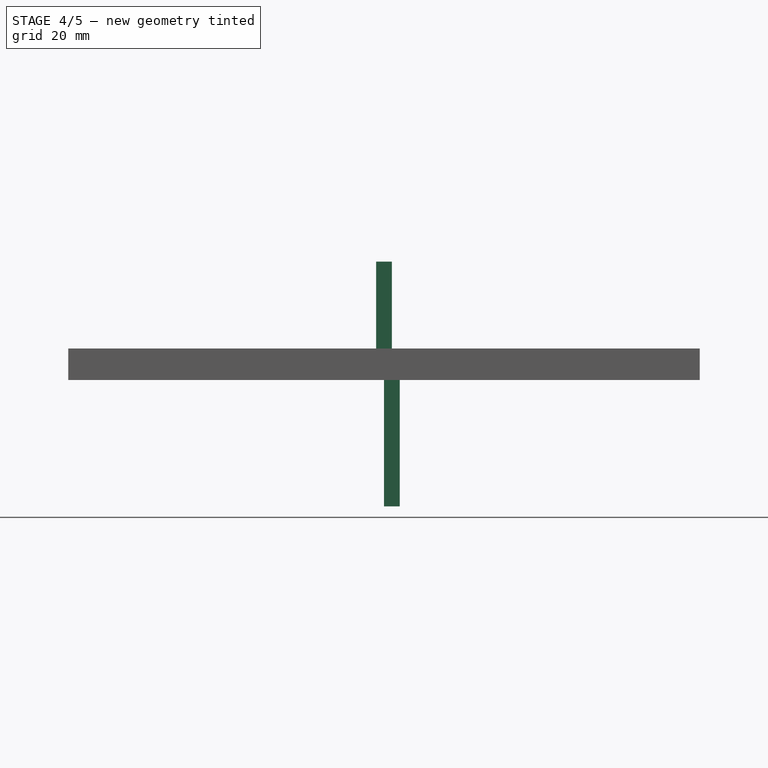
[diagram: stage 4 of 5 — front view after this stage's code; geometry added in this stage tinted green]
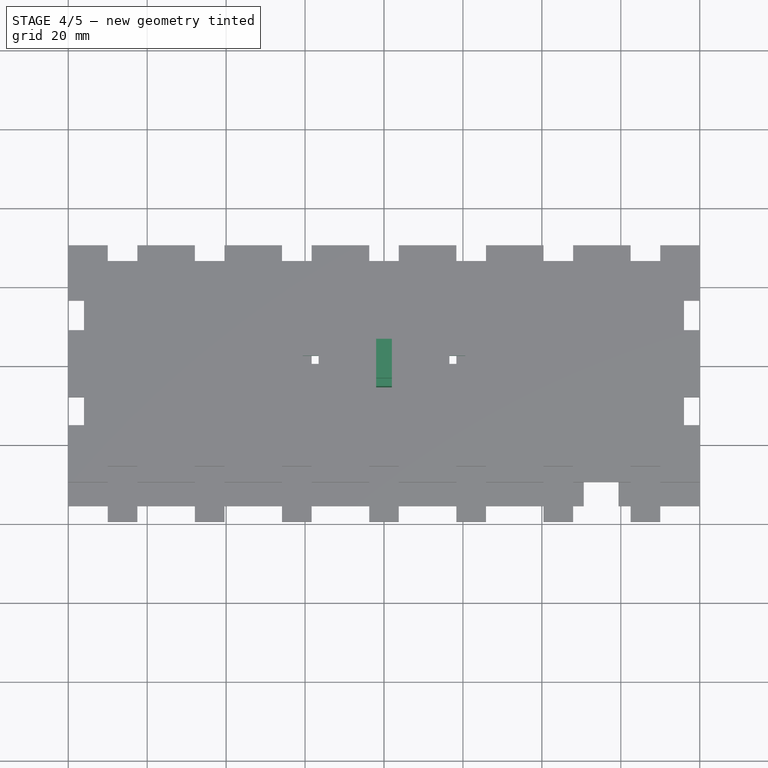
[diagram: stage 4 of 5 — top view after this stage's code; geometry added in this stage tinted green]
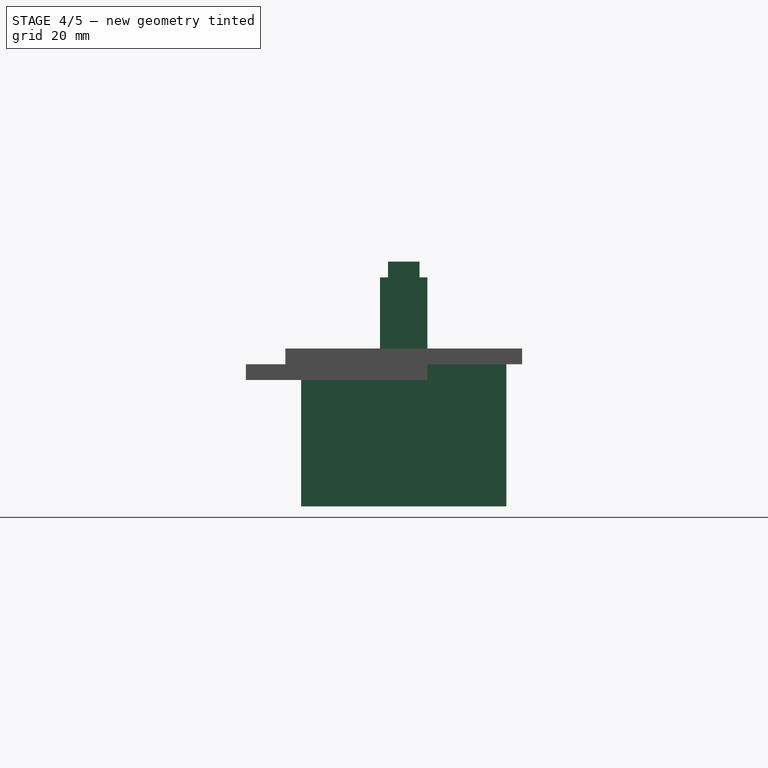
[diagram: stage 4 of 5 — right view after this stage's code; geometry added in this stage tinted green]
FEATURE [Sketcher::SketchObject] Sketch004
  FullyConstrained = true
  MapMode = 5
  Placement = pos=(0,0,0) rot=(0.57735,0.57735,0.57735;2.0944rad)
  Support = -> [YZ_Plane003]
  expr: Constraints[10] = Spreadsheet.bodyHeight
  expr: Constraints[8] = Spreadsheet.bodyDepth - Spreadsheet.deskThickness * 2
  sketch-geometry (4):
    g0: LineSegment StartX=-26 StartY=0 StartZ=0 EndX=26 EndY=0 EndZ=0
    g1: LineSegment StartX=26 StartY=0 StartZ=0 EndX=26 EndY=-36 EndZ=0
    g2: LineSegment StartX=26 StartY=-36 StartZ=0 EndX=-26 EndY=-36 EndZ=0
    g3: LineSegment StartX=-26 StartY=-36 StartZ=0 EndX=-26 EndY=0 EndZ=0
  constraints (11):
    c: Coincident(g0,g1)
    c: Coincident(g1,g2)
    c: Coincident(g2,g3)
    c: Coincident(g3,g0)
    c: Horizontal(g2)
    c: Vertical(g1)
    c: Vertical(g3)
    c: PointOnObject(g0,g-1)
    c: DistanceX(g0,g0) = 52
    c: Symmetric(g0,g0,g-2)
    c: DistanceY(g1,g1) = 36
FEATURE [PartDesign::Pad] Pad003
  Direction = (1,-2e-16,3e-16)
  Length = 4
  Length2 = 100
  Placement = pos=(0,0,0) rot=(0.57735,0.57735,0.57735;2.0944rad)
  Profile = -> Sketch004
  Type = 0
  expr: Length = Spreadsheet.deskThickness
FEATURE [Sketcher::SketchObject] Sketch012
  FullyConstrained = true
  MapMode = 5
  Placement = pos=(0,0,4) rot=(0,0,1;0rad)
  Support = -> [MultiTransform004]
  expr: Constraints[10] = Spreadsheet.deskThickness
  expr: Constraints[11] = Spreadsheet.plexiWidth
  sketch-geometry (5):
    g0: LineSegment StartX=-35 StartY=-2 StartZ=0 EndX=-35 EndY=2 EndZ=0
    g1: LineSegment StartX=-35 StartY=2 StartZ=0 EndX=35 EndY=2 EndZ=0
    g2: LineSegment StartX=35 StartY=2 StartZ=0 EndX=35 EndY=-2 EndZ=0
    g3: LineSegment StartX=35 StartY=-2 StartZ=0 EndX=-35 EndY=-2 EndZ=0
    g4: GeomPoint X=0 Y=0 Z=0
  constraints (12):
    c: Coincident(g0,g1)
    c: Coincident(g1,g2)
    c: Coincident(g2,g3)
    c: Coincident(g3,g0)
    c: Horizontal(g1)
    c: Horizontal(g3)
    c: Vertical(g0)
    c: Vertical(g2)
    c: Symmetric(g1,g0,g4)
    c: Coincident(g4,g-1)
    c: DistanceY(g2,g2) = 4
    c: DistanceX(g1,g1) = 70
FEATURE [PartDesign::Pocket] Pocket005
  BaseFeature = -> MultiTransform004
  Direction = (0,0,-1)
  Length = 4
  Length2 = 5
  Profile = -> Sketch012
  ReferenceAxis = -> Sketch012 [N_Axis]
  Type = 0
  expr: Length = Spreadsheet.deskThickness
FEATURE [PartDesign::LinearPattern] LinearPattern012
  Direction = -> X_Axis008
  Length = 65
  Occurrences = 8
  expr: Length = Spreadsheet.plexiWidth - Spreadsheet.ledRad
  expr: Occurrences = Spreadsheet.ledCount
FEATURE [PartDesign::MultiTransform] MultiTransform005
  BaseFeature = -> Pocket006
  Originals = -> [Pocket006]
  Transformations = -> [LinearPattern012]
FEATURE [PartDesign::Pad] Pad007
  Direction = (1,-2e-16,3e-16)
  Length = 2
  Length2 = 2
  Placement = pos=(0,0,0) rot=(0.57735,0.57735,0.57735;2.0944rad)
  Profile = -> Sketch014
  ReferenceAxis = -> Sketch014 [N_Axis]
  Type = 4
  expr: Length = Spreadsheet.deskThickness / 2
  expr: Length2 = Spreadsheet.deskThickness / 2
FEATURE [PartDesign::Body] Body008  label="ledHolderSupport"
  Group = -> [Sketch014,Pad007]
  Origin = -> Origin009
  Placement = pos=(-18.5714,0,-36) rot=(0,0,1;0rad)
  Tip = -> Pad007
  expr: .Placement.Base.x = -Spreadsheet.ledHolderSupportYOffset
  expr: .Placement.Base.z = -Spreadsheet.bodyHeight
FEATURE [Sketcher::SketchObject] Sketch016
  FullyConstrained = true
  MapMode = 5
  Support = -> [MultiTransform005]
  expr: Constraints[22] = Spreadsheet.deskThickness
  expr: Constraints[23] = Spreadsheet.ledPadHole
  expr: Constraints[24] = Spreadsheet.ledHolderSupportYOffset
  expr: Constraints[25] = Spreadsheet.ledHolderSupportYOffset
  sketch-geometry (10):
    g0: LineSegment StartX=16.5714 StartY=-4 StartZ=0 EndX=16.5714 EndY=4 EndZ=0
    g1: LineSegment StartX=16.5714 StartY=4 StartZ=0 EndX=20.5714 EndY=4 EndZ=0
    g2: LineSegment StartX=20.5714 StartY=4 StartZ=0 EndX=20.5714 EndY=-4 EndZ=0
    g3: LineSegment StartX=20.5714 StartY=-4 StartZ=0 EndX=16.5714 EndY=-4 EndZ=0
    g4: GeomPoint X=18.5714 Y=0 Z=0
    g5: LineSegment StartX=-20.5714 StartY=-4 StartZ=0 EndX=-20.5714 EndY=4 EndZ=0
    g6: LineSegment StartX=-20.5714 StartY=4 StartZ=0 EndX=-16.5714 EndY=4 EndZ=0
    g7: LineSegment StartX=-16.5714 StartY=4 StartZ=0 EndX=-16.5714 EndY=-4 EndZ=0
    g8: LineSegment StartX=-16.5714 StartY=-4 StartZ=0 EndX=-20.5714 EndY=-4 EndZ=0
    g9: GeomPoint X=-18.5714 Y=0 Z=0
  constraints (26):
    c: Coincident(g0,g1)
    c: Coincident(g1,g2)
    c: Coincident(g2,g3)
    c: Coincident(g3,g0)
    c: Horizontal(g1)
    c: Horizontal(g3)
    c: Vertical(g0)
    c: Vertical(g2)
    c: Symmetric(g1,g0,g4)
    c: PointOnObject(g4,g-1)
    c: Coincident(g5,g6)
    c: Coincident(g6,g7)
    c: Coincident(g7,g8)
    c: Coincident(g8,g5)
    c: Horizontal(g6)
    c: Horizontal(g8)
    c: Vertical(g5)
    c: Vertical(g7)
    c: Symmetric(g6,g5,g9)
    c: PointOnObject(g9,g-1)
    c: Equal(g6,g1)
    c: Equal(g7,g2)
    c: DistanceX(g1,g1) = 4
    c: DistanceY(g2,g2) = 8
    c: DistanceX(g-1,g4) = 18.5714
    c: DistanceX(g9,g-1) = 18.5714
FEATURE [PartDesign::Pocket] Pocket007
  BaseFeature = -> MultiTransform005
  Direction = (0,0,-1)
  Length = 4
  Length2 = 5
  Profile = -> Sketch016
  ReferenceAxis = -> Sketch016 [N_Axis]
  Type = 0
  expr: Length = Spreadsheet.deskThickness
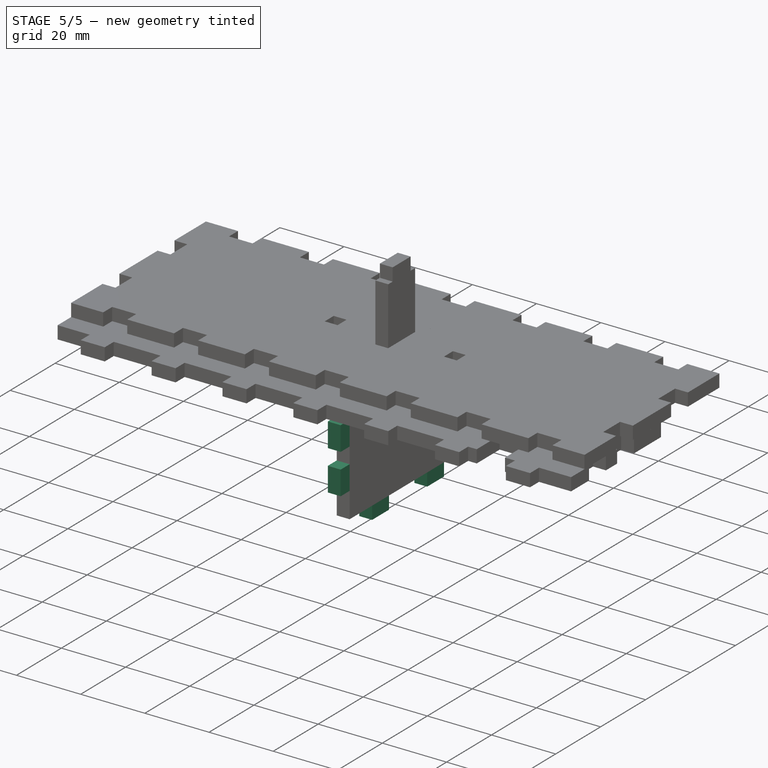
[diagram: stage 5 of 5 — iso view after this stage's code; geometry added in this stage tinted green]
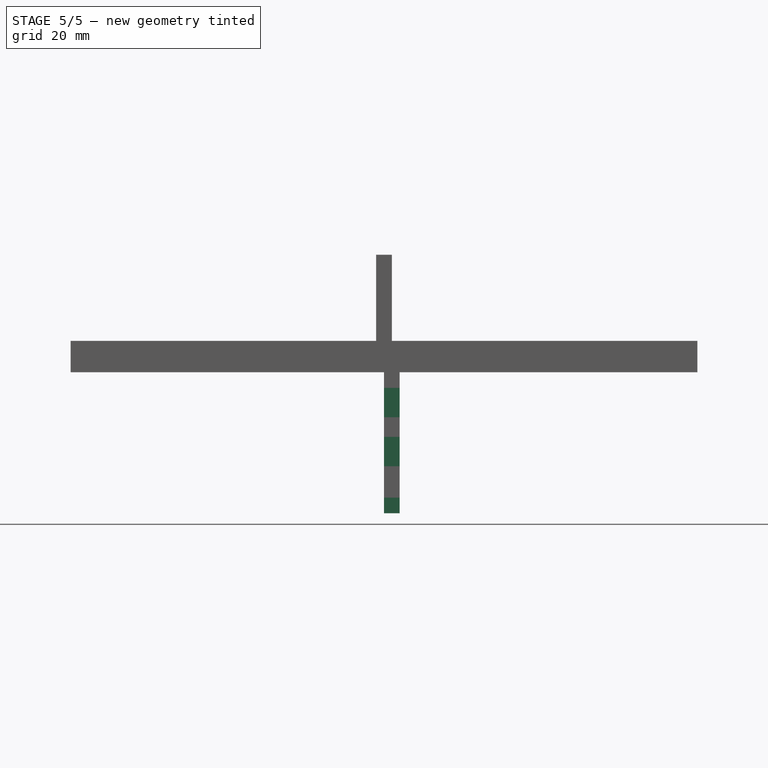
[diagram: stage 5 of 5 — front view after this stage's code; geometry added in this stage tinted green]
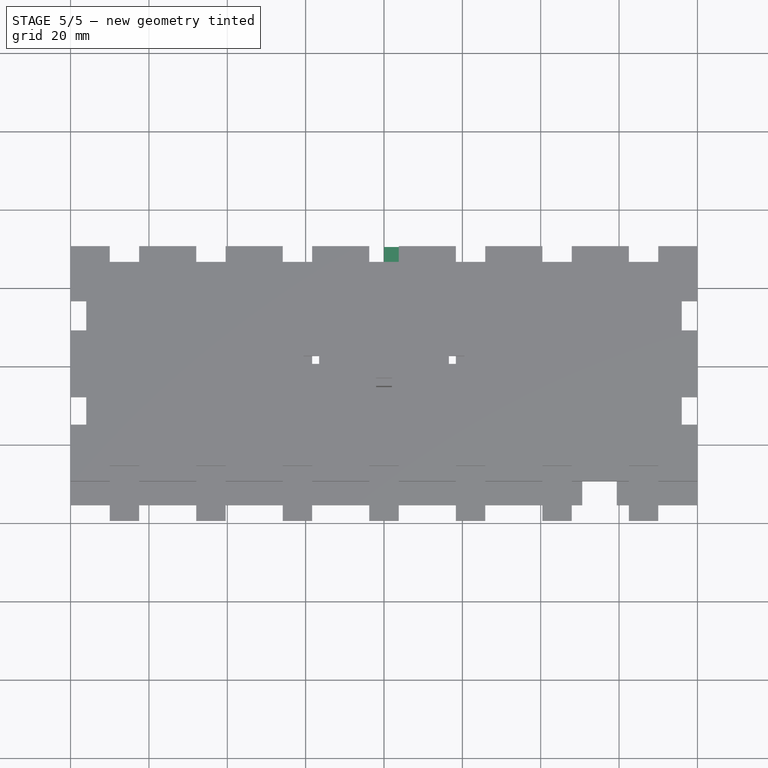
[diagram: stage 5 of 5 — top view after this stage's code; geometry added in this stage tinted green]
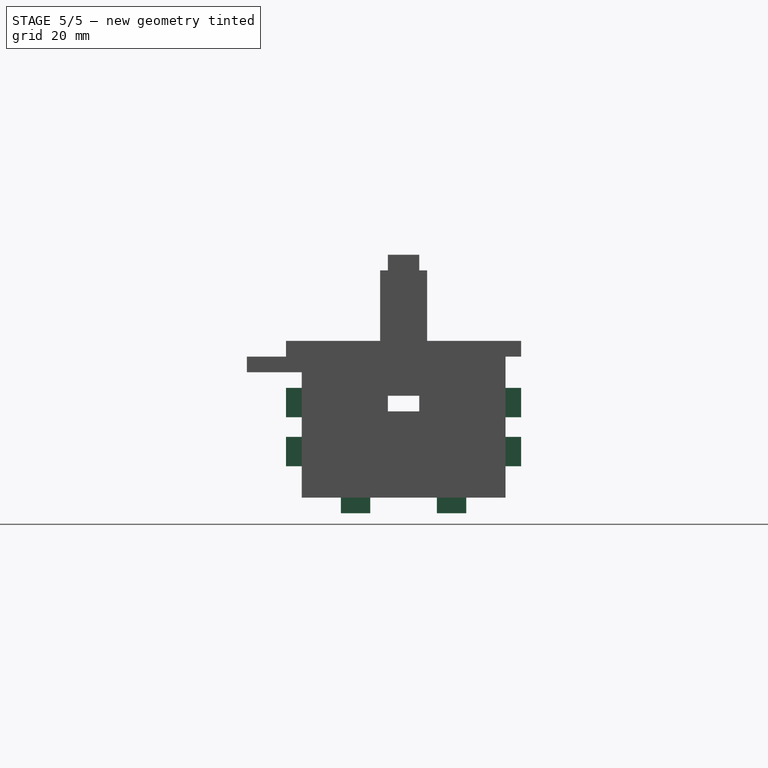
[diagram: stage 5 of 5 — right view after this stage's code; geometry added in this stage tinted green]
FEATURE [Sketcher::SketchObject] Sketch006
  ExternalGeometry = -> [Pad003]
  FullyConstrained = true
  MapMode = 5
  Placement = pos=(0,0,1e-16) rot=(0,0,-1;1.5708rad)
  Support = -> [Pad003]
  expr: Constraints[11] = Spreadsheet.holeYOffset - Spreadsheet.deskThickness
  expr: Constraints[8] = Spreadsheet.holeWidth
  expr: Constraints[9] = Spreadsheet.holeHeight
  sketch-geometry (4):
    g0: LineSegment StartX=-8.5 StartY=4 StartZ=0 EndX=-16 EndY=4 EndZ=0
    g1: LineSegment StartX=-16 StartY=4 StartZ=0 EndX=-16 EndY=0 EndZ=0
    g2: LineSegment StartX=-16 StartY=0 StartZ=0 EndX=-8.5 EndY=0 EndZ=0
    g3: LineSegment StartX=-8.5 StartY=0 StartZ=0 EndX=-8.5 EndY=4 EndZ=0
  constraints (12):
    c: Coincident(g0,g1)
    c: Coincident(g1,g2)
    c: Coincident(g2,g3)
    c: Coincident(g3,g0)
    c: Horizontal(g0)
    c: Horizontal(g2)
    c: Vertical(g1)
    c: Vertical(g3)
    c: DistanceX(g0,g0) = 7.5
    c: DistanceY(g3,g3) = 4
    c: Horizontal(g-1,g2)
    c: DistanceX(g-3,g0) = 10
FEATURE [PartDesign::Pad] Pad004
  BaseFeature = -> Pad003
  Direction = (-4e-16,6e-16,1)
  Length = 4
  Length2 = 100
  Placement = pos=(0,0,0) rot=(0.57735,0.57735,0.57735;2.0944rad)
  Profile = -> Sketch006
  Type = 0
  expr: Length = Spreadsheet.deskThickness
FEATURE [PartDesign::LinearPattern] LinearPattern006
  Direction = -> Y_Axis003
  Length = 24.5
  Occurrences = 2
  Placement = pos=(0,0,0) rot=(0.57735,0.57735,0.57735;2.0944rad)
  Reversed = true
  expr: Length = Spreadsheet.holeYLength
  expr: Occurrences = Spreadsheet.holeYCount
FEATURE [PartDesign::LinearPattern] LinearPattern007
  Direction = -> Z_Axis003
  Length = 40
  Occurrences = 2
  Placement = pos=(0,0,0) rot=(0.57735,0.57735,0.57735;2.0944rad)
  Reversed = true
  expr: Length = Spreadsheet.bodyHeight + Spreadsheet.deskThickness
FEATURE [PartDesign::MultiTransform] MultiTransform001
  BaseFeature = -> Pad004
  Originals = -> [Pad004]
  Placement = pos=(0,0,0) rot=(0.57735,0.57735,0.57735;2.0944rad)
  Transformations = -> [LinearPattern006,LinearPattern007]
FEATURE [PartDesign::Pad] Pad005
  BaseFeature = -> MultiTransform001
  Direction = (-1e-15,-1,1e-16)
  Length = 4
  Length2 = 100
  Placement = pos=(0,0,0) rot=(0.57735,0.57735,0.57735;2.0944rad)
  Profile = -> Sketch007
  Type = 0
  expr: Length = Spreadsheet.deskThickness
FEATURE [PartDesign::LinearPattern] LinearPattern008
  Direction = -> Z_Axis003
  Length = 12.5
  Occurrences = 2
  Placement = pos=(0,0,0) rot=(0.57735,0.57735,0.57735;2.0944rad)
  Reversed = true
  expr: Length = Spreadsheet.holeZLength
  expr: Occurrences = Spreadsheet.holeZCount
FEATURE [PartDesign::Mirrored] Mirrored001
  MirrorPlane = -> XZ_Plane003
  Placement = pos=(0,0,0) rot=(0.57735,0.57735,0.57735;2.0944rad)
FEATURE [PartDesign::MultiTransform] MultiTransform002
  BaseFeature = -> Pad005
  Originals = -> [Pad005]
  Placement = pos=(0,0,0) rot=(0.57735,0.57735,0.57735;2.0944rad)
  Transformations = -> [LinearPattern008,Mirrored001]
FEATURE [PartDesign::Body] Body001  label="front"
  Group = -> [Sketch002,Pad001,Sketch003,Pad002,Sketch009,Pocket002,MultiTransform,LinearPattern005,Mirrored,MultiTransform003,LinearPattern009,LinearPattern010]
  Origin = -> Origin002
  Placement = pos=(0,-30,0) rot=(0,0,1;0rad)
  Tip = -> MultiTransform003
  expr: .Placement.Base.y = -Spreadsheet.bodyDepth / 2
FEATURE [Sketcher::SketchObject] Sketch010
  FullyConstrained = true
  MapMode = 5
  Placement = pos=(0,0,4) rot=(0,0,1;0rad)
  expr: Constraints[10] = Spreadsheet.plexiThickness
  expr: Constraints[11] = Spreadsheet.plexiWidth
  sketch-geometry (5):
    g0: LineSegment StartX=-35 StartY=-2 StartZ=0 EndX=-35 EndY=2 EndZ=0
    g1: LineSegment StartX=-35 StartY=2 StartZ=0 EndX=35 EndY=2 EndZ=0
    g2: LineSegment StartX=35 StartY=2 StartZ=0 EndX=35 EndY=-2 EndZ=0
    g3: LineSegment StartX=35 StartY=-2 StartZ=0 EndX=-35 EndY=-2 EndZ=0
    g4: GeomPoint X=0 Y=0 Z=0
  constraints (12):
    c: Coincident(g0,g1)
    c: Coincident(g1,g2)
    c: Coincident(g2,g3)
    c: Coincident(g3,g0)
    c: Horizontal(g1)
    c: Horizontal(g3)
    c: Vertical(g0)
    c: Vertical(g2)
    c: Symmetric(g1,g0,g4)
    c: Coincident(g4,g-1)
    c: DistanceY(g2,g2) = 4
    c: DistanceX(g1,g1) = 70
FEATURE [App::Link] Link  label="right"
  LinkPlacement = pos=(76,0,0) rot=(0,0,1;0rad)
  LinkedObject = -> Body002
  Placement = pos=(76,0,0) rot=(0,0,1;0rad)
  expr: .Placement.Base.x = Spreadsheet.bodyWidth / 2 - Spreadsheet.deskThickness
FEATURE [Sketcher::SketchObject] Sketch011
  FullyConstrained = true
  MapMode = 5
  Placement = pos=(0,0,0) rot=(0.57735,0.57735,-0.57735;4.18879rad)
  Support = -> [MultiTransform002]
  expr: Constraints[10] = Spreadsheet.ledPadHole
  expr: Constraints[11] = Spreadsheet.deskThickness
  expr: Constraints[12] = Spreadsheet.ledPadSpace
  sketch-geometry (5):
    g0: LineSegment StartX=-4 StartY=10 StartZ=0 EndX=-4 EndY=14 EndZ=0
    g1: LineSegment StartX=-4 StartY=14 StartZ=0 EndX=4 EndY=14 EndZ=0
    g2: LineSegment StartX=4 StartY=14 StartZ=0 EndX=4 EndY=10 EndZ=0
    g3: LineSegment StartX=4 StartY=10 StartZ=0 EndX=-4 EndY=10 EndZ=0
    g4: GeomPoint X=0 Y=12 Z=0
  constraints (13):
    c: Coincident(g0,g1)
    c: Coincident(g1,g2)
    c: Coincident(g2,g3)
    c: Coincident(g3,g0)
    c: Horizontal(g1)
    c: Horizontal(g3)
    c: Vertical(g0)
    c: Vertical(g2)
    c: Symmetric(g1,g0,g4)
    c: PointOnObject(g4,g-2)
    c: DistanceX(g1,g1) = 8
    c: DistanceY(g2,g2) = 4
    c: DistanceY(g-1,g0) = 10
FEATURE [PartDesign::Pocket] Pocket004
  BaseFeature = -> MultiTransform002
  Direction = (1,-7e-16,7e-16)
  Length = 4
  Length2 = 5
  Placement = pos=(0,0,0) rot=(0.57735,0.57735,0.57735;2.0944rad)
  Profile = -> Sketch011
  ReferenceAxis = -> Sketch011 [N_Axis]
  Type = 0
  expr: Length = Spreadsheet.deskThickness
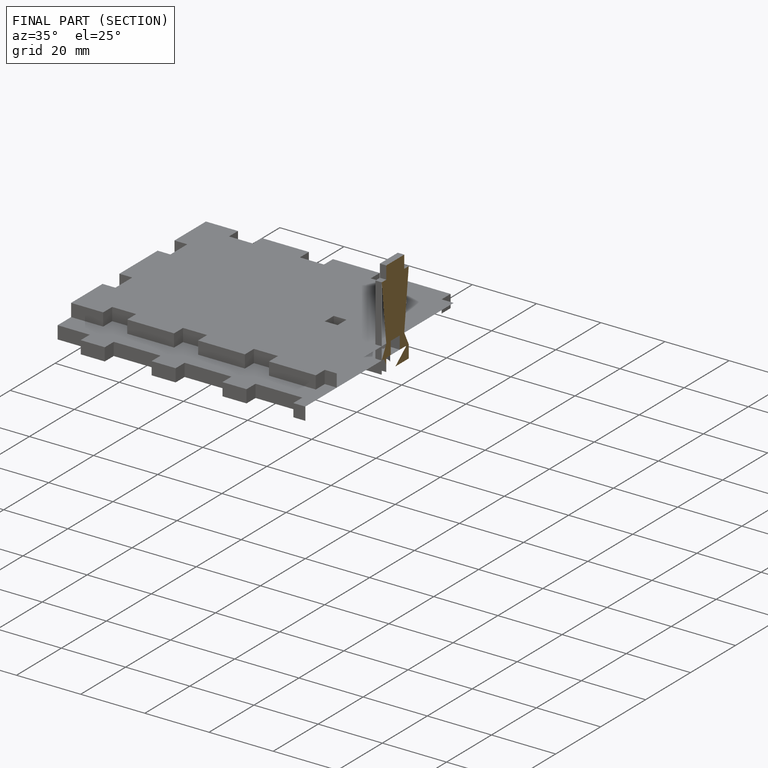
[diagram: finished part — half-section view (interior)]
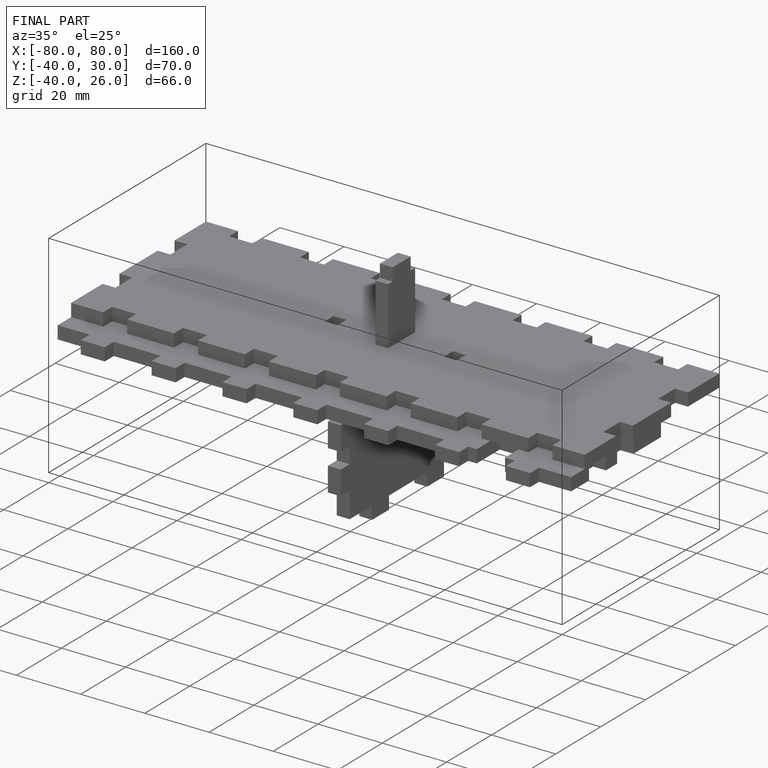
[diagram: finished part — iso view with bounding-box wireframe]
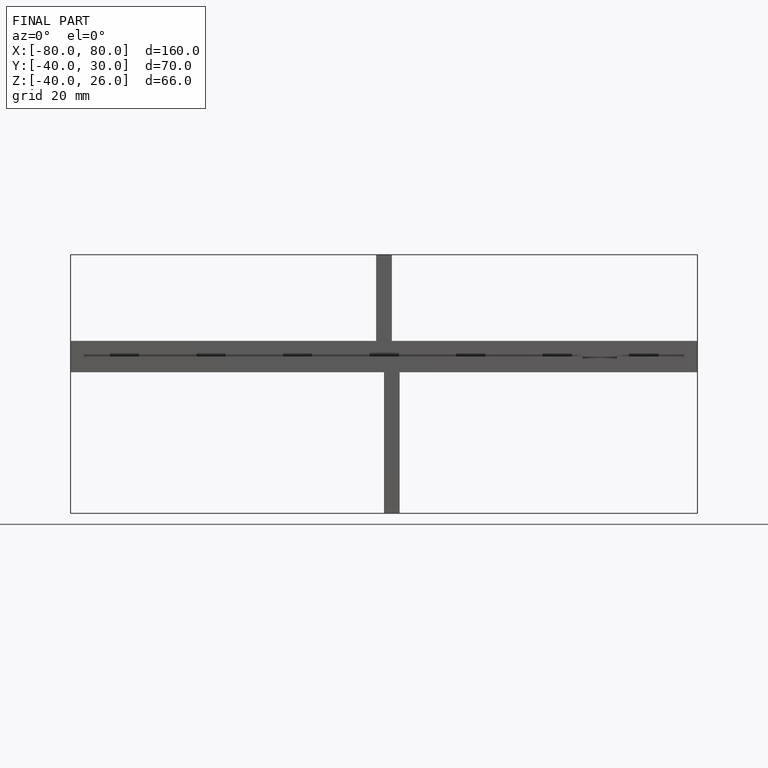
[diagram: finished part — front view with bounding-box wireframe]
